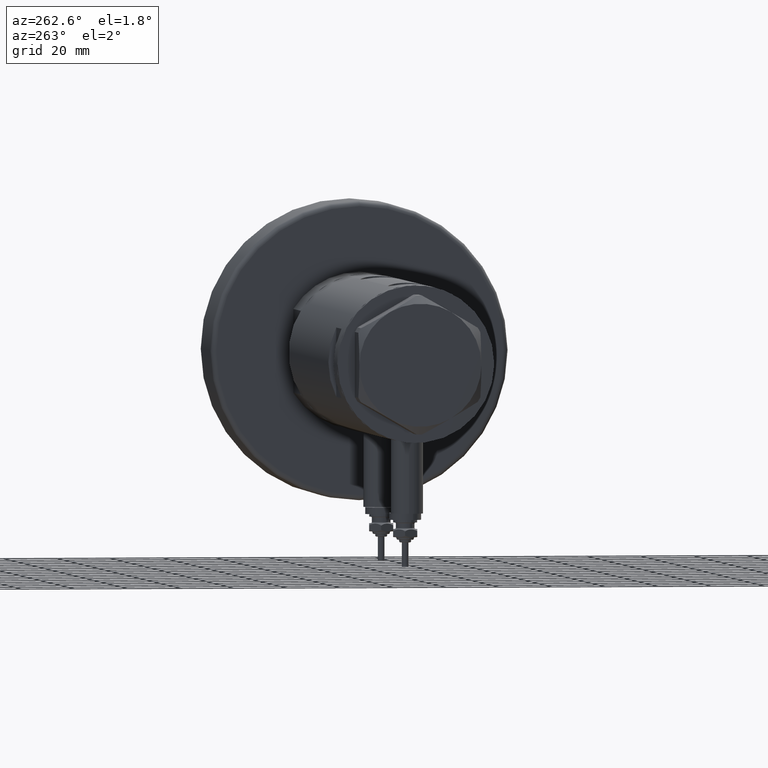
[diagram: clean part render]
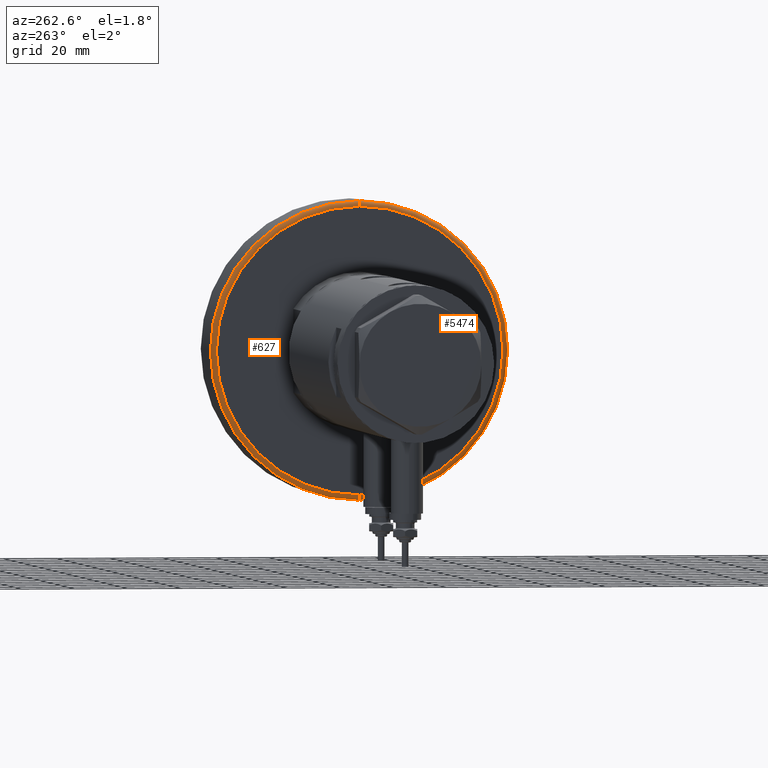
[diagram: same view with one multi-face feature highlighted, each face labeled with its STEP entity id]
A machine part, auxiliary view. The highlighted faces form ONE feature: a constant-radius fillet chain: 2 tangent blend faces with common blend radius 2 mm. The faces share edges in the B-rep.
Their STEP definitions:
[1] entity #627 (Torus):
#343 = CIRCLE ( 'NONE', #3916, 54.00000000000000000 ) ;
#417 = ORIENTED_EDGE ( 'NONE', *, *, #3789, .F. ) ;
#627 = ADVANCED_FACE ( 'NONE', ( #3539 ), #6136, .T. ) ;
#668 = CARTESIAN_POINT ( 'NONE',  ( 0.000000000000000000, 0.000000000000000000, 2.000000000000001776 ) ) ;
#896 = EDGE_CURVE ( 'NONE', #6304, #6299, #343, .T. ) ;
#1014 = EDGE_CURVE ( 'NONE', #6299, #5015, #6229, .T. ) ;
#1342 = DIRECTION ( 'NONE',  ( -1.000000000000000000, 1.224646799147353454E-16, 0.000000000000000000 ) ) ;
#1344 = EDGE_CURVE ( 'NONE', #6304, #5188, #3096, .T. ) ;
#1757 = ORIENTED_EDGE ( 'NONE', *, *, #1014, .F. ) ;
#1987 = AXIS2_PLACEMENT_3D ( 'NONE', #5071, #2197, #2709 ) ;
#2176 = AXIS2_PLACEMENT_3D ( 'NONE', #4761, #2388, #1342 ) ;
#2194 = DIRECTION ( 'NONE',  ( 1.000000000000000000, 0.000000000000000000, 0.000000000000000000 ) ) ;
#2197 = DIRECTION ( 'NONE',  ( 0.000000000000000000, -1.000000000000000000, 0.000000000000000000 ) ) ;
#2388 = DIRECTION ( 'NONE',  ( 1.224646799147353207E-16, 1.000000000000000000, -0.000000000000000000 ) ) ;
#2391 = DIRECTION ( 'NONE',  ( 1.000000000000000000, 0.000000000000000000, 0.000000000000000000 ) ) ;
#2449 = ORIENTED_EDGE ( 'NONE', *, *, #896, .F. ) ;
#2709 = DIRECTION ( 'NONE',  ( 0.000000000000000000, 0.000000000000000000, -1.000000000000000000 ) ) ;
#2870 = DIRECTION ( 'NONE',  ( -0.000000000000000000, -0.000000000000000000, -1.000000000000000000 ) ) ;
#3096 = CIRCLE ( 'NONE', #2176, 2.000000000000001776 ) ;
#3104 = AXIS2_PLACEMENT_3D ( 'NONE', #4153, #3629, #2194 ) ;
#3539 = FACE_OUTER_BOUND ( 'NONE', #4989, .T. ) ;
#3629 = DIRECTION ( 'NONE',  ( 0.000000000000000000, 0.000000000000000000, 1.000000000000000000 ) ) ;
#3741 = CARTESIAN_POINT ( 'NONE',  ( -54.00000000000000000, 6.735557395310443404E-15, 0.000000000000000000 ) ) ;
#3789 = EDGE_CURVE ( 'NONE', #5015, #5188, #5148, .T. ) ;
#3916 = AXIS2_PLACEMENT_3D ( 'NONE', #5805, #2870, #2391 ) ;
#4097 = DIRECTION ( 'NONE',  ( 1.000000000000000000, 0.000000000000000000, 0.000000000000000000 ) ) ;
#4153 = CARTESIAN_POINT ( 'NONE',  ( 0.000000000000000000, 0.000000000000000000, 2.000000000000001776 ) ) ;
#4191 = CARTESIAN_POINT ( 'NONE',  ( 54.00000000000000000, 0.000000000000000000, 0.000000000000000000 ) ) ;
#4603 = DIRECTION ( 'NONE',  ( 0.000000000000000000, 0.000000000000000000, 1.000000000000000000 ) ) ;
#4761 = CARTESIAN_POINT ( 'NONE',  ( -54.00000000000000000, 6.613092715395707467E-15, 2.000000000000001776 ) ) ;
#4878 = ORIENTED_EDGE ( 'NONE', *, *, #1344, .T. ) ;
#4989 = EDGE_LOOP ( 'NONE', ( #2449, #4878, #417, #1757 ) ) ;
#5015 = VERTEX_POINT ( 'NONE', #6172 ) ;
#5071 = CARTESIAN_POINT ( 'NONE',  ( 54.00000000000000000, 0.000000000000000000, 2.000000000000001776 ) ) ;
#5148 = CIRCLE ( 'NONE', #3104, 56.00000000000000000 ) ;
#5188 = VERTEX_POINT ( 'NONE', #6122 ) ;
#5805 = CARTESIAN_POINT ( 'NONE',  ( 0.000000000000000000, 0.000000000000000000, 0.000000000000000000 ) ) ;
#5935 = AXIS2_PLACEMENT_3D ( 'NONE', #668, #4603, #4097 ) ;
#6122 = CARTESIAN_POINT ( 'NONE',  ( -56.00000000000000000, 0.000000000000000000, 2.000000000000001776 ) ) ;
#6136 = TOROIDAL_SURFACE ( 'NONE', #5935, 54.00000000000000000, 2.000000000000000000 ) ;
#6172 = CARTESIAN_POINT ( 'NONE',  ( 56.00000000000000000, 6.858022075225178552E-15, 2.000000000000001776 ) ) ;
#6229 = CIRCLE ( 'NONE', #1987, 2.000000000000000000 ) ;
#6299 = VERTEX_POINT ( 'NONE', #4191 ) ;
#6304 = VERTEX_POINT ( 'NONE', #3741 ) ;
[2] entity #5474 (Torus):
#322 = DIRECTION ( 'NONE',  ( 0.000000000000000000, 0.000000000000000000, 1.000000000000000000 ) ) ;
#411 = CARTESIAN_POINT ( 'NONE',  ( 0.000000000000000000, 0.000000000000000000, 2.000000000000001776 ) ) ;
#1014 = EDGE_CURVE ( 'NONE', #6299, #5015, #6229, .T. ) ;
#1019 = ORIENTED_EDGE ( 'NONE', *, *, #3836, .F. ) ;
#1090 = CIRCLE ( 'NONE', #2703, 54.00000000000000000 ) ;
#1342 = DIRECTION ( 'NONE',  ( -1.000000000000000000, 1.224646799147353454E-16, 0.000000000000000000 ) ) ;
#1344 = EDGE_CURVE ( 'NONE', #6304, #5188, #3096, .T. ) ;
#1380 = AXIS2_PLACEMENT_3D ( 'NONE', #1756, #3153, #4663 ) ;
#1756 = CARTESIAN_POINT ( 'NONE',  ( 0.000000000000000000, 0.000000000000000000, 2.000000000000001776 ) ) ;
#1987 = AXIS2_PLACEMENT_3D ( 'NONE', #5071, #2197, #2709 ) ;
#2176 = AXIS2_PLACEMENT_3D ( 'NONE', #4761, #2388, #1342 ) ;
#2197 = DIRECTION ( 'NONE',  ( 0.000000000000000000, -1.000000000000000000, 0.000000000000000000 ) ) ;
#2388 = DIRECTION ( 'NONE',  ( 1.224646799147353207E-16, 1.000000000000000000, -0.000000000000000000 ) ) ;
#2703 = AXIS2_PLACEMENT_3D ( 'NONE', #4636, #4161, #6088 ) ;
#2709 = DIRECTION ( 'NONE',  ( 0.000000000000000000, 0.000000000000000000, -1.000000000000000000 ) ) ;
#2749 = FACE_OUTER_BOUND ( 'NONE', #5354, .T. ) ;
#3096 = CIRCLE ( 'NONE', #2176, 2.000000000000001776 ) ;
#3153 = DIRECTION ( 'NONE',  ( 0.000000000000000000, 0.000000000000000000, 1.000000000000000000 ) ) ;
#3212 = CIRCLE ( 'NONE', #1380, 56.00000000000000000 ) ;
#3741 = CARTESIAN_POINT ( 'NONE',  ( -54.00000000000000000, 6.735557395310443404E-15, 0.000000000000000000 ) ) ;
#3836 = EDGE_CURVE ( 'NONE', #5188, #5015, #3212, .T. ) ;
#4157 = AXIS2_PLACEMENT_3D ( 'NONE', #411, #322, #5774 ) ;
#4161 = DIRECTION ( 'NONE',  ( -0.000000000000000000, -0.000000000000000000, -1.000000000000000000 ) ) ;
#4191 = CARTESIAN_POINT ( 'NONE',  ( 54.00000000000000000, 0.000000000000000000, 0.000000000000000000 ) ) ;
#4273 = EDGE_CURVE ( 'NONE', #6299, #6304, #1090, .T. ) ;
#4406 = ORIENTED_EDGE ( 'NONE', *, *, #1344, .F. ) ;
#4443 = ORIENTED_EDGE ( 'NONE', *, *, #4273, .F. ) ;
#4608 = ORIENTED_EDGE ( 'NONE', *, *, #1014, .T. ) ;
#4636 = CARTESIAN_POINT ( 'NONE',  ( 0.000000000000000000, 0.000000000000000000, 0.000000000000000000 ) ) ;
#4663 = DIRECTION ( 'NONE',  ( 1.000000000000000000, 0.000000000000000000, 0.000000000000000000 ) ) ;
#4761 = CARTESIAN_POINT ( 'NONE',  ( -54.00000000000000000, 6.613092715395707467E-15, 2.000000000000001776 ) ) ;
#5015 = VERTEX_POINT ( 'NONE', #6172 ) ;
#5071 = CARTESIAN_POINT ( 'NONE',  ( 54.00000000000000000, 0.000000000000000000, 2.000000000000001776 ) ) ;
#5188 = VERTEX_POINT ( 'NONE', #6122 ) ;
#5354 = EDGE_LOOP ( 'NONE', ( #4406, #4443, #4608, #1019 ) ) ;
#5474 = ADVANCED_FACE ( 'NONE', ( #2749 ), #5969, .T. ) ;
#5774 = DIRECTION ( 'NONE',  ( 1.000000000000000000, 0.000000000000000000, 0.000000000000000000 ) ) ;
#5969 = TOROIDAL_SURFACE ( 'NONE', #4157, 54.00000000000000000, 2.000000000000000000 ) ;
#6088 = DIRECTION ( 'NONE',  ( 1.000000000000000000, 0.000000000000000000, 0.000000000000000000 ) ) ;
#6122 = CARTESIAN_POINT ( 'NONE',  ( -56.00000000000000000, 0.000000000000000000, 2.000000000000001776 ) ) ;
#6172 = CARTESIAN_POINT ( 'NONE',  ( 56.00000000000000000, 6.858022075225178552E-15, 2.000000000000001776 ) ) ;
#6229 = CIRCLE ( 'NONE', #1987, 2.000000000000000000 ) ;
#6299 = VERTEX_POINT ( 'NONE', #4191 ) ;
#6304 = VERTEX_POINT ( 'NONE', #3741 ) ;